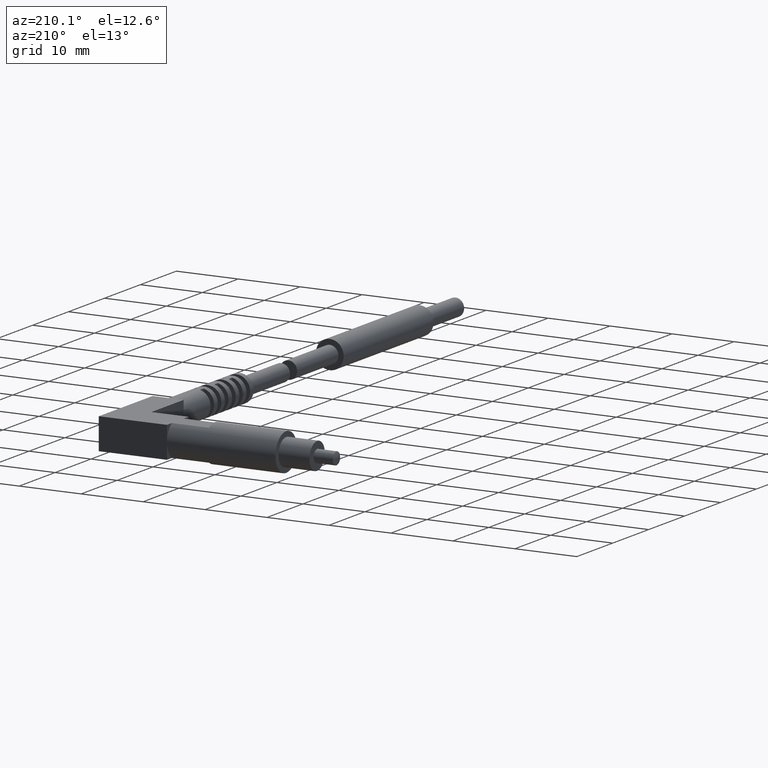
[diagram: clean part render]
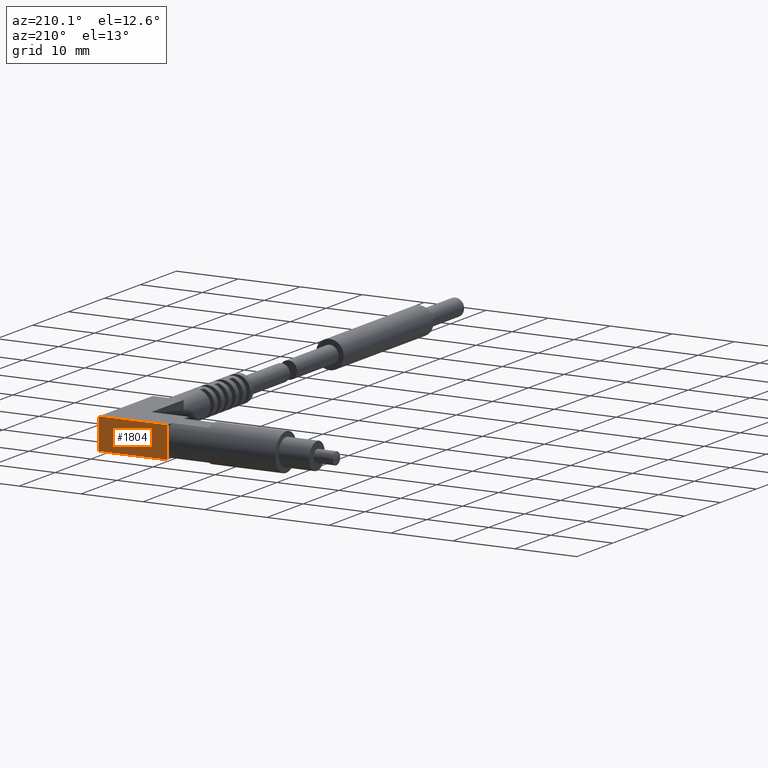
[diagram: same view with one face highlighted and labeled with its STEP entity id]
A machine part, auxiliary view. The second image highlights one B-rep face of the part: STEP entity #1804.
In plain terms, the highlighted planar face has unit normal (0, -1, 0).
Its self-contained STEP definition (entity closure, byte-faithful):
#48 = DIRECTION ( 'NONE',  ( -1.000000000000000000, 0.0000000000000000000, 0.0000000000000000000 ) ) ;
#87 = VERTEX_POINT ( 'NONE', #1508 ) ;
#133 = CARTESIAN_POINT ( 'NONE',  ( 1.456692913385826849, 0.1181102362204724532, -0.09842519685039370636 ) ) ;
#181 = ORIENTED_EDGE ( 'NONE', *, *, #349, .F. ) ;
#225 = CARTESIAN_POINT ( 'NONE',  ( 1.456692913385826849, 0.1181102362204724532, -0.09842519685039370636 ) ) ;
#249 = VERTEX_POINT ( 'NONE', #533 ) ;
#301 = EDGE_LOOP ( 'NONE', ( #1574, #1782, #181, #377, #714 ) ) ;
#305 = VECTOR ( 'NONE', #1581, 39.37007874015748143 ) ;
#349 = EDGE_CURVE ( 'NONE', #87, #1136, #525, .T. ) ;
#377 = ORIENTED_EDGE ( 'NONE', *, *, #1154, .F. ) ;
#391 = PLANE ( 'NONE',  #1628 ) ;
#393 = CARTESIAN_POINT ( 'NONE',  ( 1.023622047244094446, 0.1181102362204724532, 0.09842519685039370636 ) ) ;
#428 = DIRECTION ( 'NONE',  ( 0.0000000000000000000, 0.0000000000000000000, -1.000000000000000000 ) ) ;
#471 = VECTOR ( 'NONE', #48, 39.37007874015748143 ) ;
#505 = CARTESIAN_POINT ( 'NONE',  ( 1.023622047244094446, 0.1181102362204724532, -0.09842519685039370636 ) ) ;
#525 = LINE ( 'NONE', #393, #1345 ) ;
#533 = CARTESIAN_POINT ( 'NONE',  ( 1.456692913385826849, 0.1181102362204724532, 0.09842519685039370636 ) ) ;
#714 = ORIENTED_EDGE ( 'NONE', *, *, #1475, .T. ) ;
#720 = VERTEX_POINT ( 'NONE', #505 ) ;
#757 = CARTESIAN_POINT ( 'NONE',  ( 1.023622047244094446, 0.1181102362204724532, 0.09842519685039370636 ) ) ;
#933 = CARTESIAN_POINT ( 'NONE',  ( 1.456692913385826849, 0.1181102362204724532, 0.09842519685039370636 ) ) ;
#982 = EDGE_CURVE ( 'NONE', #1136, #720, #1592, .T. ) ;
#1028 = CARTESIAN_POINT ( 'NONE',  ( 1.456692913385826849, 0.1181102362204724532, 0.09842519685039370636 ) ) ;
#1097 = LINE ( 'NONE', #133, #305 ) ;
#1124 = DIRECTION ( 'NONE',  ( 0.0000000000000000000, -1.000000000000000000, 0.0000000000000000000 ) ) ;
#1136 = VERTEX_POINT ( 'NONE', #1364 ) ;
#1154 = EDGE_CURVE ( 'NONE', #249, #87, #1897, .T. ) ;
#1207 = FACE_OUTER_BOUND ( 'NONE', #301, .T. ) ;
#1222 = VERTEX_POINT ( 'NONE', #225 ) ;
#1261 = DIRECTION ( 'NONE',  ( 0.0000000000000000000, 0.0000000000000000000, -1.000000000000000000 ) ) ;
#1284 = DIRECTION ( 'NONE',  ( 0.0000000000000000000, 0.0000000000000000000, -1.000000000000000000 ) ) ;
#1322 = VECTOR ( 'NONE', #1476, 39.37007874015748143 ) ;
#1345 = VECTOR ( 'NONE', #1284, 39.37007874015748143 ) ;
#1364 = CARTESIAN_POINT ( 'NONE',  ( 1.023622047244094446, 0.1181102362204724532, 0.0000000000000000000 ) ) ;
#1441 = EDGE_CURVE ( 'NONE', #1222, #720, #1097, .T. ) ;
#1475 = EDGE_CURVE ( 'NONE', #249, #1222, #1701, .T. ) ;
#1476 = DIRECTION ( 'NONE',  ( 0.0000000000000000000, 0.0000000000000000000, -1.000000000000000000 ) ) ;
#1508 = CARTESIAN_POINT ( 'NONE',  ( 1.023622047244094446, 0.1181102362204724532, 0.09842519685039370636 ) ) ;
#1574 = ORIENTED_EDGE ( 'NONE', *, *, #1441, .T. ) ;
#1581 = DIRECTION ( 'NONE',  ( -1.000000000000000000, 0.0000000000000000000, 0.0000000000000000000 ) ) ;
#1592 = LINE ( 'NONE', #757, #1322 ) ;
#1628 = AXIS2_PLACEMENT_3D ( 'NONE', #1824, #1124, #1261 ) ;
#1701 = LINE ( 'NONE', #1028, #1797 ) ;
#1782 = ORIENTED_EDGE ( 'NONE', *, *, #982, .F. ) ;
#1797 = VECTOR ( 'NONE', #428, 39.37007874015748143 ) ;
#1804 = ADVANCED_FACE ( 'NONE', ( #1207 ), #391, .F. ) ;
#1824 = CARTESIAN_POINT ( 'NONE',  ( 1.456692913385826849, 0.1181102362204724532, 0.09842519685039370636 ) ) ;
#1897 = LINE ( 'NONE', #933, #471 ) ;